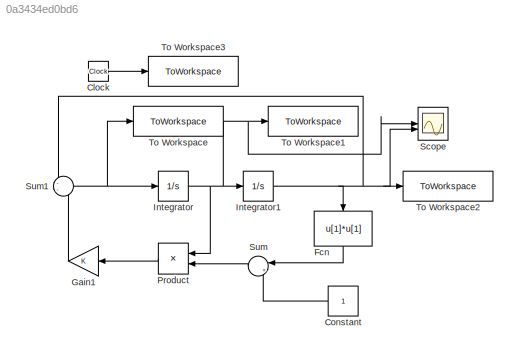
MODEL slx_0a3434ed0bd6
KIND model
CONFIG AbsTol = auto
CONFIG EnableMultiTasking = off
CONFIG FixedStep = 0.2
CONFIG MaxStep = 0
CONFIG MinStep = 1
CONFIG RelTol = 1e-3
CONFIG SampleTimeConstraint = Unconstrained
CONFIG SolverName = ode4
CONFIG StartTime = 0.0
CONFIG StopTime = 60
BLOCK [Clock] Clock
BLOCK [Constant] Constant
BLOCK [Fcn] Fcn
  Expr = u[1]*u[1]
  NameLocation = left
BLOCK [Gain] Gain1
BLOCK [Integrator] Integrator
  InitialCondition = 0.5
BLOCK [Integrator] Integrator1
  InitialCondition = -0.5
BLOCK [Product] Product
BLOCK [Scope] Scope
  ActiveDisplayYMaximum = 3.3430478496592735
  ActiveDisplayYMinimum = -3.3440872923691023
  Floating = off
  GraphicalSettings = {"Style":{"BackgroundColor":[0.12941176470588237,0.12941176470588237,0.12941176470588237],"AxesColor":[0.07058823529411765,0.07058823529411765,0.07058823529411765],"LabelsColor":[0.8509803921568627,0.8509803921568627,0.8509803921568627],"PreserveColors":false,"Visible":[true,true],"LineStyle":["-","-"],"LineWidth":[1.5,1.5],"BarWidth":[0.9,0.9],"LineColor":["auto","auto"],"LineFaceAlpha":[1,1],"Li...<+2127ch>
  MultipleDisplayCache = [{"MaxYLimMag":3.3440872923691023,"MaxYLimReal":3.3430478496592735,"MinYLimMag":0,"MinYLimReal":-3.3440872923691023,"PlotAsMagnitudePhase":false,"ShowGrid":true,"ShowLegend":false,"Title":"%<SignalLabel>","YLabel":""}]
  NumInputPorts = 2
  ScopeFrameLocation = window
  Visible = on
  WasSavedAsWebScope = on
  WindowPosition = [482.000000,889.000000,560.000000,420.000000,]
BLOCK [Sum] Sum
  Inputs = |+-
BLOCK [Sum] Sum1
  Inputs = --
BLOCK [ToWorkspace] To Workspace
  FixptAsFi = on
  MaxDataPoints = inf
  SampleTime = -1
  VariableName = ydotdot
BLOCK [ToWorkspace] To Workspace1
  FixptAsFi = on
  MaxDataPoints = inf
  SampleTime = -1
  VariableName = ydot
BLOCK [ToWorkspace] To Workspace2
  FixptAsFi = on
  MaxDataPoints = inf
  SampleTime = -1
  VariableName = y
BLOCK [ToWorkspace] To Workspace3
  FixptAsFi = on
  MaxDataPoints = inf
  SampleTime = -1
  SaveFormat = Timeseries
  VariableName = t
LINE Clock:1 -> To Workspace3:1
LINE Constant:1 -> Sum:2
LINE Fcn:1 -> Sum:1
LINE Gain1:1 -> Sum1:2
NET Integrator1:1 -> Fcn:1, Scope:2, Sum1:1, To Workspace2:1
NET Integrator:1 -> Integrator1:1, Product:1, Scope:1, To Workspace1:1
LINE Product:1 -> Gain1:1
NET Sum1:1 -> Integrator:1, To Workspace:1
LINE Sum:1 -> Product:2
note: NET lines group one-source signal fan-out (src -> all destinations, sorted); 1:1 wires keep LINE
